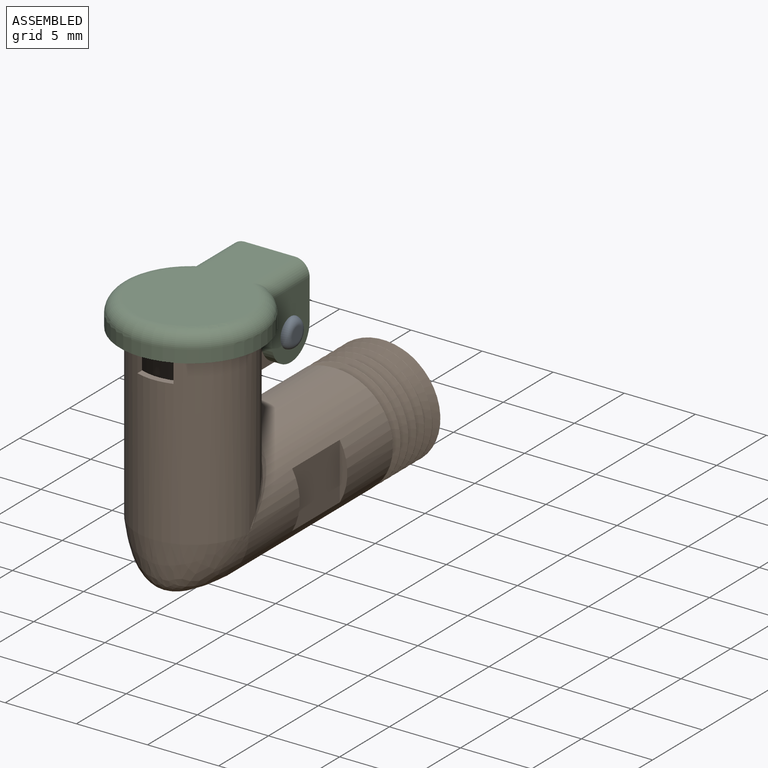
[diagram: assembled view]
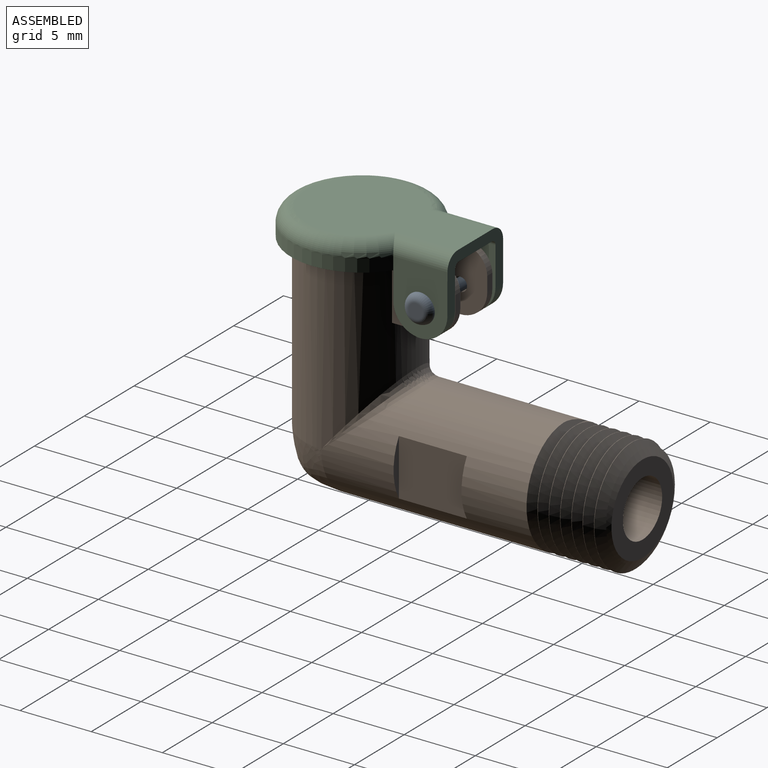
[diagram: assembled view, second angle]
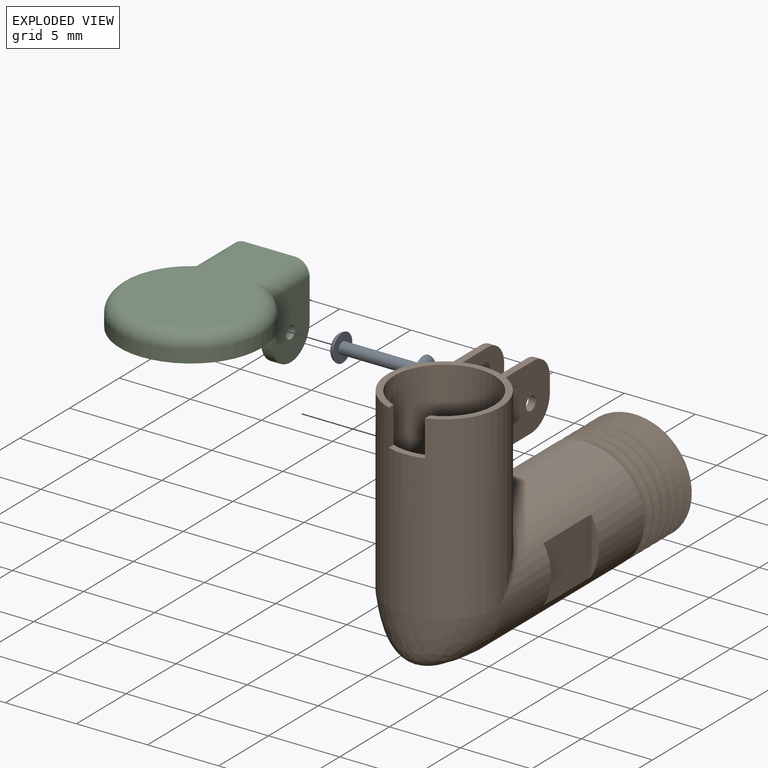
[diagram: exploded view]
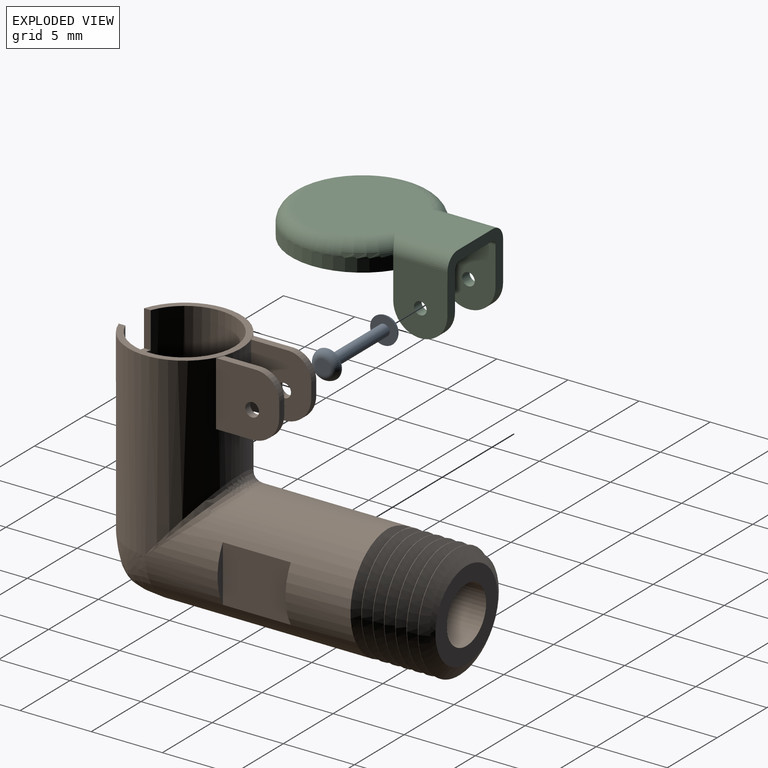
[diagram: exploded view, second angle]
ASSEMBLY  parts=3 mates=2
PART A: 7 faces, bbox 6.6x2.2x2.2 mm
  f0: cylinder r=0.4mm len=5.66mm, axis (-1,0,0), area 14.4mm2, adj f1,f3
  f1: plane 1.94x1.94mm, normal (1,0,0), area 2.4mm2, adj f0,f6
  f2: plane 0.93x0.93mm, normal (-1,0,0), area 0.7mm2, adj f6
  f3: plane 2.03x2.03mm, normal (-1,0,0), area 2.7mm2, adj f0,f5
  f4: plane 1.02x1.02mm, normal (1,0,0), area 0.8mm2, adj f5
  f5: torus R=0.51mm, axis (-1,0,0), area 3.9mm2, adj f3,f4
  f6: torus R=0.47mm, axis (-1,0,0), area 3.5mm2, adj f1,f2
PART B: 45 faces, bbox 9.2x24.1x16.7 mm
  f0: plane 2.88x0.51mm, normal (0,0,1), area 1.4mm2, adj f1,f6,f43,f44
  f1: plane 4.52x4.45mm, normal (1,0,0), area 18mm2, adj f0,f2,f3,f4,f5,f6,f44
  f2: cylinder r=0.48mm len=0.97mm, axis (1,0,0), area 1.5mm2, adj f1,f43
  f3: cylinder r=1.91mm len=1.91mm, axis (1,0,0), area 1.5mm2, adj f1,f4,f5,f43
  f4: plane 2.54x0.51mm, normal (0,0,-1), area 1.2mm2, adj f1,f3,f6,f43
  f5: plane 1.04x0.51mm, normal (0,1,0), area 0.5mm2, adj f1,f3,f43,f44
  f6: cylinder r=3.96mm len=12.7mm, axis (0,0,-1), area 267.2mm2, adj f0,f1,f4,f7,f12,f13,f14,f15
  f7: plane 4.52x4.45mm, normal (-1,0,0), area 18mm2, adj f6,f8,f9,f10,f11,f12,f14
  f8: cylinder r=1.91mm len=1.91mm, axis (1,0,0), area 1.5mm2, adj f7,f9,f13,f14
  f9: plane 1.04x0.51mm, normal (0,1,0), area 0.5mm2, adj f7,f8,f10,f13
  f10: cylinder r=1.63mm len=1.57mm, axis (1,0,0), area 1.2mm2, adj f7,f9,f12,f13
  f11: cylinder r=0.48mm len=0.97mm, axis (1,0,0), area 1.5mm2, adj f7,f13
  f12: plane 2.88x0.51mm, normal (0,0,1), area 1.4mm2, adj f6,f7,f10,f13
  f13: plane 4.52x4.22mm, normal (1,0,0), area 17mm2, adj f6,f8,f9,f10,f11,f12,f14
  f14: plane 2.54x0.51mm, normal (0,0,-1), area 1.2mm2, adj f6,f7,f8,f13
  f15: plane 2.54x0.47mm, normal (1,0,0), area 1.2mm2, adj f6,f16,f38,f40
  f16: cylinder r=3.52mm len=13.97mm, axis (0,0,1), area 291mm2, adj f15,f17,f19,f38,f39,f40
  f17: plane 7.04x6.7mm, normal (0,0,1), area 22.4mm2, adj f16,f18,f19
  f18: plane 3.01x0.7mm, normal (0,1,0), area 1.5mm2, adj f17,f19
  f19: cylinder r=1.97mm len=21.87mm, axis (0,1,0), area 223.6mm2, adj f16,f17,f18,f20
  f20: plane 6.26x6.26mm, normal (0,1,0), area 18.6mm2, adj f19,f21
  f21: cone r=4.05mm half-angle=60deg, axis (0,-1,0), area 12.8mm2, adj f20,f22,f36,f37
  f22: cylinder r=3.96mm len=7.92mm, axis (0,-1,0), area 0.7mm2, adj f21,f23,f36,f37
  f23: cylinder r=3.96mm len=7.92mm, axis (0,-1,0), area 0.7mm2, adj f22,f24,f36,f37
  f24: cylinder r=3.96mm len=7.92mm, axis (0,-1,0), area 0.7mm2, adj f23,f25,f36,f37
  f25: cylinder r=3.96mm len=7.92mm, axis (0,-1,0), area 0.7mm2, adj f24,f26,f36,f37
  f26: cylinder r=3.96mm len=7.92mm, axis (0,-1,0), area 0.7mm2, adj f25,f27,f36,f37
  f27: cylinder r=3.96mm len=15.42mm, axis (0,-1,0), area 286.2mm2, adj f26,f28,f29,f30,f31,f32,f33,f34
  f28: plane 3.97x0.53mm, normal (0,1,0), area 1.4mm2, adj f27,f29
  f29: plane 4.78x3.97mm, normal (1,0,0), area 19mm2, adj f27,f28,f30
  f30: plane 3.97x0.53mm, normal (0,-1,0), area 1.4mm2, adj f27,f29
  f31: plane 3.97x0.53mm, normal (0,1,0), area 1.4mm2, adj f27,f32
  f32: plane 4.78x3.97mm, normal (-1,0,0), area 19mm2, adj f27,f31,f33
  f33: plane 3.97x0.53mm, normal (0,-1,0), area 1.4mm2, adj f27,f32
  f34: plane 2.19x0.66mm, normal (0,-0.87,0.5), area 1.1mm2, adj f27,f35,f37
  f35: plane 2.19x0.66mm, normal (0,0.87,0.5), area 1.1mm2, adj f27,f34,f36
  f36: bspline ~9.18x7.95mm, area 112.4mm2, adj f21,f22,f23,f24,f25,f26,f27,f35
  f37: bspline ~9.18x7.95mm, area 103.6mm2, adj f21,f22,f23,f24,f25,f26,f27,f34
  f38: plane 2.54x0.68mm, normal (0,0,1), area 1.2mm2, adj f6,f15,f16,f39
  f39: plane 2.54x0.47mm, normal (-1,0,0), area 1.2mm2, adj f6,f16,f38,f40
  f40: plane 7.92x7.72mm, normal (0,0,1), area 9.3mm2, adj f6,f15,f16,f39
  f41: bspline ~7.92x4.72mm, area 0mm2, adj f6,f27
  f42: bspline ~7.92x3.99mm, area 33.1mm2, adj f6,f27
  f43: plane 4.52x4.22mm, normal (-1,0,0), area 17mm2, adj f0,f2,f3,f4,f5,f6,f44
  f44: cylinder r=1.63mm len=1.57mm, axis (1,0,0), area 1.2mm2, adj f0,f1,f5,f43
PART C: 23 faces, bbox 10.8x13.4x5.7 mm
  f0: plane 1.91x0.76mm, normal (0,-1,0), area 1.5mm2, adj f1,f5,f8,f15
  f1: cylinder r=1.91mm len=3.81mm, axis (1,0,0), area 4.6mm2, adj f0,f8,f15,f19
  f2: cylinder r=1.91mm len=3.81mm, axis (1,0,0), area 4.6mm2, adj f3,f6,f16,f18
  f3: plane 1.91x0.77mm, normal (0,1,0), area 1.5mm2, adj f2,f6,f7,f16
  f4: cylinder r=0.44mm len=0.89mm, axis (1,0,0), area 2.1mm2, adj f8,f15
  f5: plane 9.98x9.13mm, normal (0,0,-1), area 18.5mm2, adj f0,f9,f14,f15,f16,f18
  f6: plane 4.7x3.81mm, normal (1,0,0), area 15.7mm2, adj f2,f3,f7,f9,f11,f18,f20
  f7: plane 5.59x1.91mm, normal (0,1,0), area 5.6mm2, adj f3,f6,f8,f10,f11,f13,f15,f16
  f8: plane 4.7x3.81mm, normal (-1,0,0), area 15.7mm2, adj f0,f1,f4,f7,f9,f13,f19
  f9: cylinder r=4.99mm len=9.98mm, axis (0,0,-1), area 22.6mm2, adj f5,f6,f8,f12
  f10: plane 11.92x7.95mm, normal (0,0,1), area 64.3mm2, adj f7,f11,f12,f13
  f11: cylinder r=1.02mm len=4.39mm, axis (0,-1,0), area 6.5mm2, adj f6,f7,f10,f12
  f12: torus R=3.98mm, axis (0,0,1), area 38.5mm2, adj f9,f10,f11,f13
  f13: cylinder r=1.02mm len=4.39mm, axis (0,1,0), area 6.5mm2, adj f7,f8,f10,f12
  f14: cylinder r=4.23mm len=8.46mm, axis (0,0,-1), area 25.7mm2, adj f5,f15,f16,f17,f21,f22
  f15: plane 4.57x4.24mm, normal (1,0,0), area 15.6mm2, adj f0,f1,f4,f5,f7,f14,f19,f21
  f16: plane 4.57x4.24mm, normal (-1,0,0), area 15.6mm2, adj f2,f3,f5,f7,f14,f18,f20,f22
  f17: plane 12.18x8.46mm, normal (0,0,-1), area 68.8mm2, adj f7,f14,f21,f22
  f18: plane 1.91x0.76mm, normal (0,-1,0), area 1.5mm2, adj f2,f5,f6,f16
  f19: plane 1.91x0.77mm, normal (0,1,0), area 1.5mm2, adj f1,f7,f8,f15
  f20: cylinder r=0.44mm len=0.89mm, axis (1,0,0), area 2.1mm2, adj f6,f16
  f21: cylinder r=0.38mm len=4.24mm, axis (0,1,0), area 2.5mm2, adj f7,f14,f15,f17
  f22: cylinder r=0.38mm len=4.24mm, axis (0,-1,0), area 2.5mm2, adj f7,f14,f16,f17
PLACE A t=(-15.49,4.24,4.72)mm
PLACE B t=(-15.29,4.24,4.72)mm
PLACE C rot(axis=(1,0,0),0deg) t=(-15.43,4.24,1.2)mm
MATE revolute A.f0 <-> C.f1  axis (-1,0,0) through (-12.64,10.28,14.79)mm
MATE revolute C.f1 <-> B.f2  axis (-1,0,0) through (-13.4,10.28,14.79)mm
